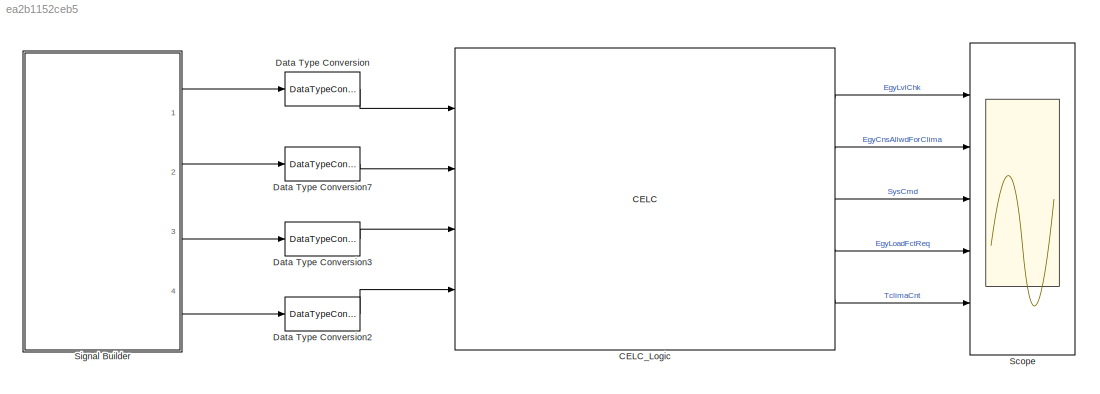
MODEL slx_ea2b1152ceb5
KIND model
CONFIG AbsTol = auto
CONFIG FixedStep = auto
CONFIG MaxStep = auto
CONFIG MinStep = auto
CONFIG RelTol = 1e-3
CONFIG SampleTimeConstraint = Unconstrained
CONFIG Solver = VariableStepDiscrete
CONFIG SolverMode = Auto
CONFIG SolverName = VariableStepDiscrete
CONFIG StartTime = 0.0
CONFIG StopTime = 10
BLOCK [Reference] CELC_Logic  REF=CELCmgrLogicLib/CELC
  Ports = [4, 5]
  SourceBlock = CELCmgrLogicLib/CELC
  SourceType = SubSystem
BLOCK [DataTypeConversion] Data Type Conversion
  OutDataTypeStr = uint16
  RndMeth = Floor
  SaturateOnIntegerOverflow = off
BLOCK [DataTypeConversion] Data Type Conversion2
  OutDataTypeStr = uint8
  RndMeth = Floor
  SaturateOnIntegerOverflow = off
BLOCK [DataTypeConversion] Data Type Conversion3
  OutDataTypeStr = uint16
  RndMeth = Floor
  SaturateOnIntegerOverflow = off
BLOCK [DataTypeConversion] Data Type Conversion7
  OutDataTypeStr = uint8
  RndMeth = Floor
  SaturateOnIntegerOverflow = off
BLOCK [Scope] Scope
  NumInputPorts = 5
  Ports = [5]
  ScopeSpecificationString = Simulink.scopes.TimeScopeBlockCfg('CurrentConfiguration', extmgr.ConfigurationSet(extmgr.Configuration('Core','General UI',true),extmgr.Configuration('Core','Source UI',true),extmgr.Configuration('Sources','WiredSimulink',true,'DataLoggingSaveFormat','StructureWithTime','DataLoggingLimitDataPoints',true,'DataLoggingDecimation','1','DataLoggingDecimateData',true),extmgr.Configuration('Visuals','Tim...<+3683ch>
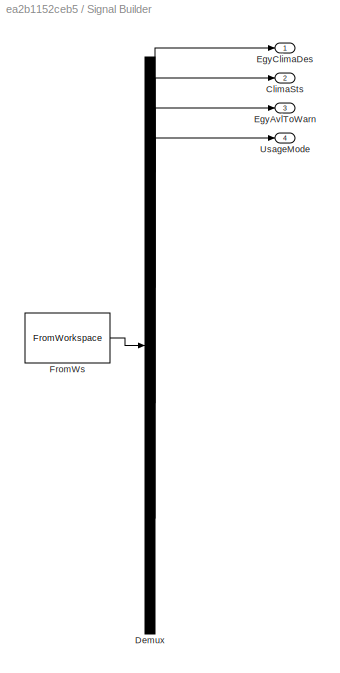
BLOCK [SubSystem] Signal Builder
  ClipboardFcn = sigbuilder_block('clipboard');
  CloseFcn = sigbuilder_block('close');
  ContinueFcn = sigbuilder_block('continue');
  CopyFcn = sigbuilder_block('copy');
  DeleteFcn = sigbuilder_block('delete');
  LoadFcn = sigbuilder_block('load');
  MaskHideContents = on
  ModelCloseFcn = sigbuilder_block('modelClose');
  NameChangeFcn = sigbuilder_block('namechange');
  OpenFcn = sigbuilder_block('open',[1152 0 1152 592.8 ]);
  PauseFcn = sigbuilder_block('pause');
  Ports = [0, 4]
  PreSaveFcn = sigbuilder_block('preSave');
  RequestExecContextInheritance = off
  StartFcn = sigbuilder_block('start');
  StopFcn = sigbuilder_block('stop');
  Tag = STV Subsys
  Variant = off
BLOCK [Outport] Signal Builder/ClimaSts
  IconDisplay = Port number
  Port = 2
  Tag = STV Outport
BLOCK [Demux] Signal Builder/Demux
  Ports = [1, 4]
  Tag = STV Demux
BLOCK [Outport] Signal Builder/EgyAvlToWarn
  IconDisplay = Port number
  Port = 3
  Tag = STV Outport
BLOCK [Outport] Signal Builder/EgyClimaDes
  IconDisplay = Port number
  Tag = STV Outport
BLOCK [FromWorkspace] Signal Builder/FromWs
  SampleTime = 0
  Tag = STV FromWs
  VariableName = tuvar
  ZeroCross = on
BLOCK [Outport] Signal Builder/UsageMode
  IconDisplay = Port number
  Port = 4
  Tag = STV Outport
LINE CELC_Logic:1 -> Scope:1
LINE CELC_Logic:2 -> Scope:2
LINE CELC_Logic:3 -> Scope:3
LINE CELC_Logic:4 -> Scope:4
LINE CELC_Logic:5 -> Scope:5
LINE Data Type Conversion2:1 -> CELC_Logic:4
LINE Data Type Conversion3:1 -> CELC_Logic:3
LINE Data Type Conversion7:1 -> CELC_Logic:2
LINE Data Type Conversion:1 -> CELC_Logic:1
LINE Signal Builder:1 -> Data Type Conversion:1
LINE Signal Builder:2 -> Data Type Conversion7:1
LINE Signal Builder:3 -> Data Type Conversion3:1
LINE Signal Builder:4 -> Data Type Conversion2:1
